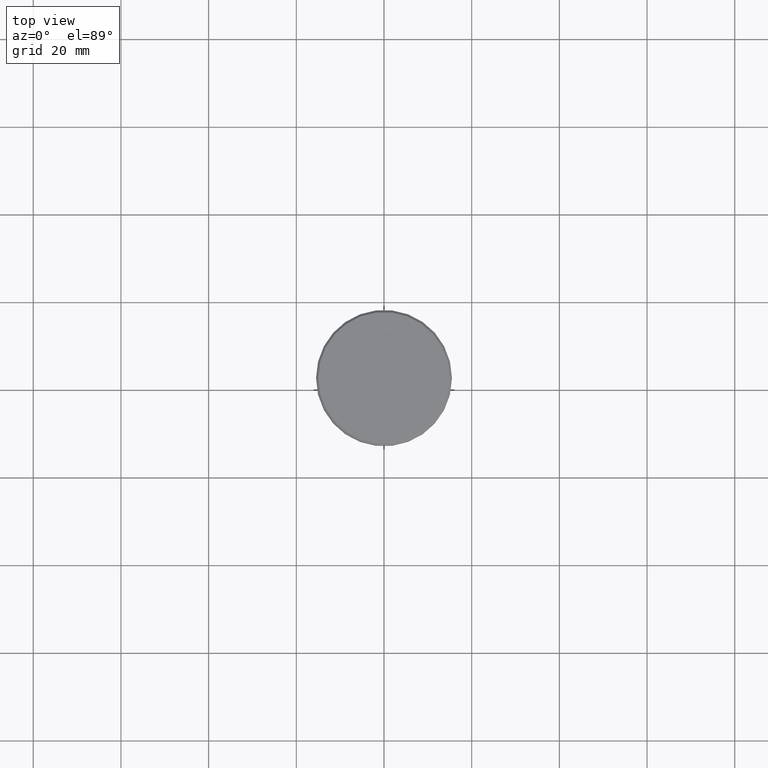
[diagram: clean part render]
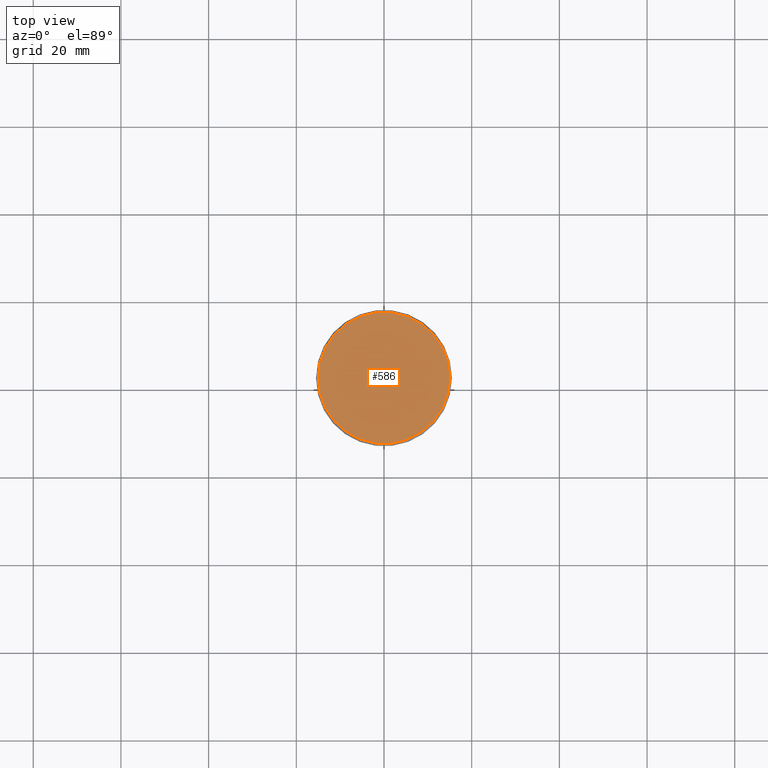
[diagram: same view with one face highlighted and labeled with its STEP entity id]
A machine part, top view. The second image highlights one B-rep face of the part: STEP entity #586.
In plain terms, the highlighted planar face has unit normal (0, -0, 1).
Its self-contained STEP definition (entity closure, byte-faithful):
#12 = AXIS2_PLACEMENT_3D ( 'NONE', #231, #1034, #761 ) ;
#28 = AXIS2_PLACEMENT_3D ( 'NONE', #327, #334, #244 ) ;
#40 = CARTESIAN_POINT ( 'NONE',  ( -14.99999999999998579, 0.000000000000000000, 0.000000000000000000 ) ) ;
#47 = PLANE ( 'NONE',  #28 ) ;
#70 = CARTESIAN_POINT ( 'NONE',  ( 14.99999999999998579, 1.867586368699712587E-15, 0.000000000000000000 ) ) ;
#231 = CARTESIAN_POINT ( 'NONE',  ( 0.000000000000000000, 0.000000000000000000, 0.000000000000000000 ) ) ;
#235 = DIRECTION ( 'NONE',  ( -0.000000000000000000, -0.000000000000000000, 1.000000000000000000 ) ) ;
#244 = DIRECTION ( 'NONE',  ( 1.000000000000000000, 0.000000000000000000, 0.000000000000000000 ) ) ;
#288 = VERTEX_POINT ( 'NONE', #40 ) ;
#301 = AXIS2_PLACEMENT_3D ( 'NONE', #1101, #235, #1050 ) ;
#327 = CARTESIAN_POINT ( 'NONE',  ( 0.000000000000000000, 0.000000000000000000, 0.000000000000000000 ) ) ;
#334 = DIRECTION ( 'NONE',  ( 0.000000000000000000, -0.000000000000000000, 1.000000000000000000 ) ) ;
#337 = VERTEX_POINT ( 'NONE', #70 ) ;
#352 = FACE_OUTER_BOUND ( 'NONE', #387, .T. ) ;
#387 = EDGE_LOOP ( 'NONE', ( #654, #745 ) ) ;
#521 = EDGE_CURVE ( 'NONE', #288, #337, #648, .T. ) ;
#586 = ADVANCED_FACE ( 'NONE', ( #352 ), #47, .T. ) ;
#648 = CIRCLE ( 'NONE', #301, 14.99999999999998579 ) ;
#654 = ORIENTED_EDGE ( 'NONE', *, *, #521, .T. ) ;
#745 = ORIENTED_EDGE ( 'NONE', *, *, #1090, .T. ) ;
#761 = DIRECTION ( 'NONE',  ( 1.000000000000000000, 0.000000000000000000, 0.000000000000000000 ) ) ;
#1034 = DIRECTION ( 'NONE',  ( -0.000000000000000000, -0.000000000000000000, 1.000000000000000000 ) ) ;
#1050 = DIRECTION ( 'NONE',  ( 1.000000000000000000, 0.000000000000000000, 0.000000000000000000 ) ) ;
#1090 = EDGE_CURVE ( 'NONE', #337, #288, #1175, .T. ) ;
#1101 = CARTESIAN_POINT ( 'NONE',  ( 0.000000000000000000, 0.000000000000000000, 0.000000000000000000 ) ) ;
#1175 = CIRCLE ( 'NONE', #12, 14.99999999999998579 ) ;